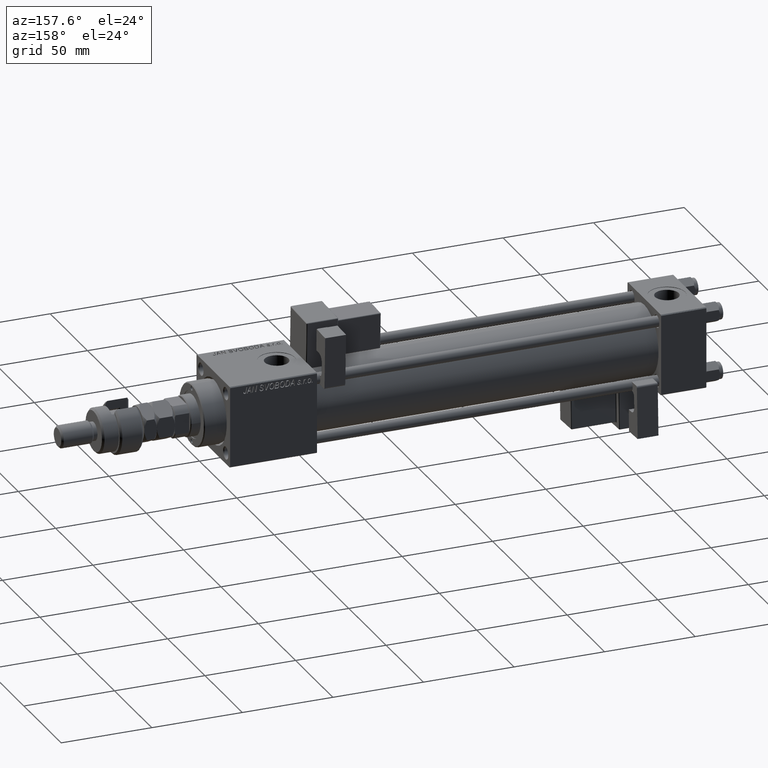
[diagram: clean part render]
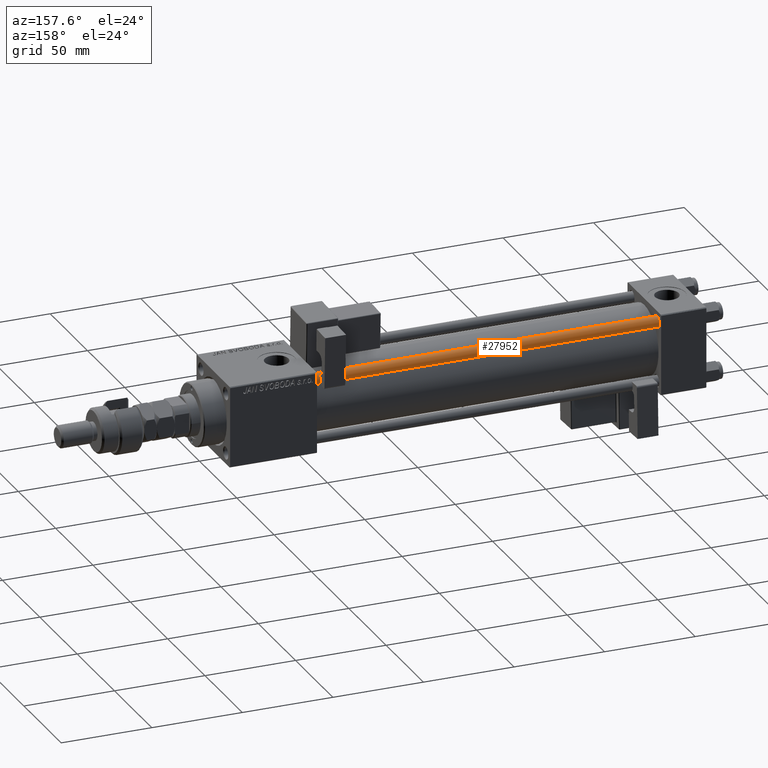
[diagram: same view with one face highlighted and labeled with its STEP entity id]
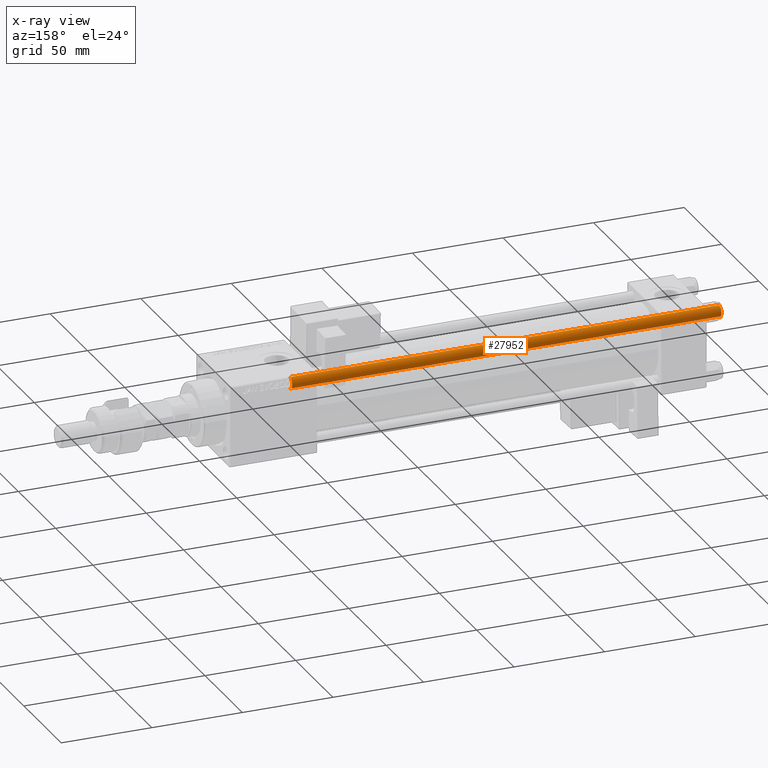
[diagram: x-ray of the same camera — body ghosted, the highlighted face saturated]
A machine part, auxiliary view. The second image highlights one B-rep face of the part: STEP entity #27952.
The next image is the same camera in x-ray: the body ghosted, the highlighted face saturated — about 0% of this face is hidden behind the body in this view.
In plain terms, the highlighted cylindrical surface (edge-blend (fillet) strip) has radius 3 mm, axis along (-1, 0, 0).
Its self-contained STEP definition (entity closure, byte-faithful):
#1613 = DIRECTION ( 'NONE',  ( -1.000000000000000000, 0.000000000000000000, 0.000000000000000000 ) ) ;
#3936 = DIRECTION ( 'NONE',  ( 1.000000000000000000, 0.000000000000000000, 0.000000000000000000 ) ) ;
#7392 = DIRECTION ( 'NONE',  ( -0.000000000000000000, -0.000000000000000000, 1.000000000000000000 ) ) ;
#10285 = DIRECTION ( 'NONE',  ( -0.000000000000000000, -0.000000000000000000, -1.000000000000000000 ) ) ;
#12677 = CARTESIAN_POINT ( 'NONE',  ( -3.000000000000000444, 0.000000000000000000, 237.5000000000000284 ) ) ;
#12980 = VECTOR ( 'NONE', #31287, 1000.000000000000000 ) ;
#13898 = EDGE_CURVE ( 'NONE', #23574, #28242, #35261, .T. ) ;
#15525 = CARTESIAN_POINT ( 'NONE',  ( 0.000000000000000000, 0.000000000000000000, 0.5000000000000281997 ) ) ;
#17208 = CARTESIAN_POINT ( 'NONE',  ( -3.000000000000000444, 0.000000000000000000, 0.5000000000000281997 ) ) ;
#17735 = EDGE_CURVE ( 'NONE', #31086, #23574, #54938, .T. ) ;
#21651 = CARTESIAN_POINT ( 'NONE',  ( 3.000000000000000444, 3.673940397442060361E-16, 0.5000000000000281997 ) ) ;
#21656 = EDGE_CURVE ( 'NONE', #28242, #54561, #46395, .T. ) ;
#23446 = LINE ( 'NONE', #27085, #12980 ) ;
#23477 = VECTOR ( 'NONE', #42594, 1000.000000000000000 ) ;
#23574 = VERTEX_POINT ( 'NONE', #50800 ) ;
#27085 = CARTESIAN_POINT ( 'NONE',  ( -3.000000000000000444, 0.000000000000000000, 238.0000000000000000 ) ) ;
#27093 = CYLINDRICAL_SURFACE ( 'NONE', #50116, 3.000000000000000444 ) ;
#27952 = ADVANCED_FACE ( 'NONE', ( #52630 ), #27093, .T. ) ;
#28242 = VERTEX_POINT ( 'NONE', #21651 ) ;
#31086 = VERTEX_POINT ( 'NONE', #12677 ) ;
#31287 = DIRECTION ( 'NONE',  ( -0.000000000000000000, -0.000000000000000000, -1.000000000000000000 ) ) ;
#32682 = EDGE_LOOP ( 'NONE', ( #52741, #48032, #41364, #47764 ) ) ;
#35261 = LINE ( 'NONE', #38382, #23477 ) ;
#38382 = CARTESIAN_POINT ( 'NONE',  ( 3.000000000000000444, 3.673940397442060361E-16, 238.0000000000000000 ) ) ;
#38992 = EDGE_CURVE ( 'NONE', #31086, #54561, #23446, .T. ) ;
#40005 = CARTESIAN_POINT ( 'NONE',  ( 0.000000000000000000, 0.000000000000000000, 238.0000000000000000 ) ) ;
#41364 = ORIENTED_EDGE ( 'NONE', *, *, #21656, .T. ) ;
#41501 = CARTESIAN_POINT ( 'NONE',  ( 0.000000000000000000, 0.000000000000000000, 237.5000000000000284 ) ) ;
#41771 = DIRECTION ( 'NONE',  ( 0.000000000000000000, 0.000000000000000000, -1.000000000000000000 ) ) ;
#42594 = DIRECTION ( 'NONE',  ( -0.000000000000000000, -0.000000000000000000, -1.000000000000000000 ) ) ;
#46395 = CIRCLE ( 'NONE', #47275, 3.000000000000000444 ) ;
#46860 = AXIS2_PLACEMENT_3D ( 'NONE', #41501, #41771, #3936 ) ;
#47275 = AXIS2_PLACEMENT_3D ( 'NONE', #15525, #7392, #53915 ) ;
#47764 = ORIENTED_EDGE ( 'NONE', *, *, #38992, .F. ) ;
#48032 = ORIENTED_EDGE ( 'NONE', *, *, #13898, .T. ) ;
#50116 = AXIS2_PLACEMENT_3D ( 'NONE', #40005, #10285, #1613 ) ;
#50800 = CARTESIAN_POINT ( 'NONE',  ( 3.000000000000000444, 3.673940397442060361E-16, 237.5000000000000284 ) ) ;
#52630 = FACE_OUTER_BOUND ( 'NONE', #32682, .T. ) ;
#52741 = ORIENTED_EDGE ( 'NONE', *, *, #17735, .T. ) ;
#53915 = DIRECTION ( 'NONE',  ( 1.000000000000000000, 0.000000000000000000, 0.000000000000000000 ) ) ;
#54561 = VERTEX_POINT ( 'NONE', #17208 ) ;
#54938 = CIRCLE ( 'NONE', #46860, 3.000000000000000444 ) ;